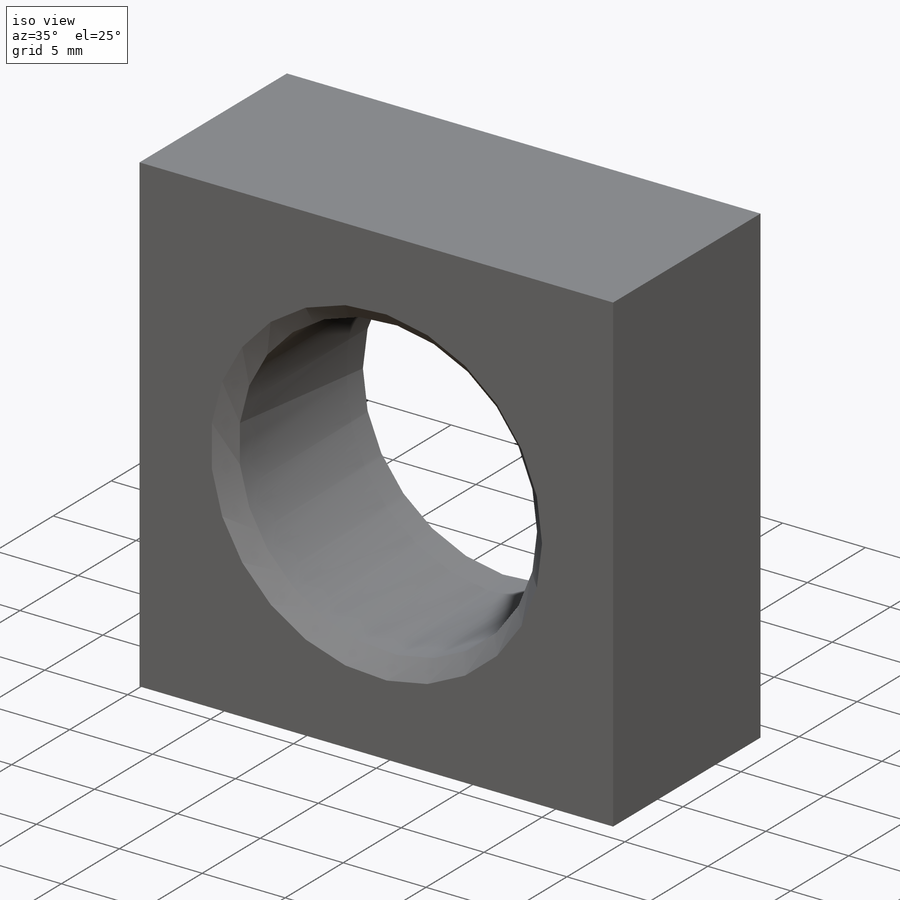
[diagram: iso view]
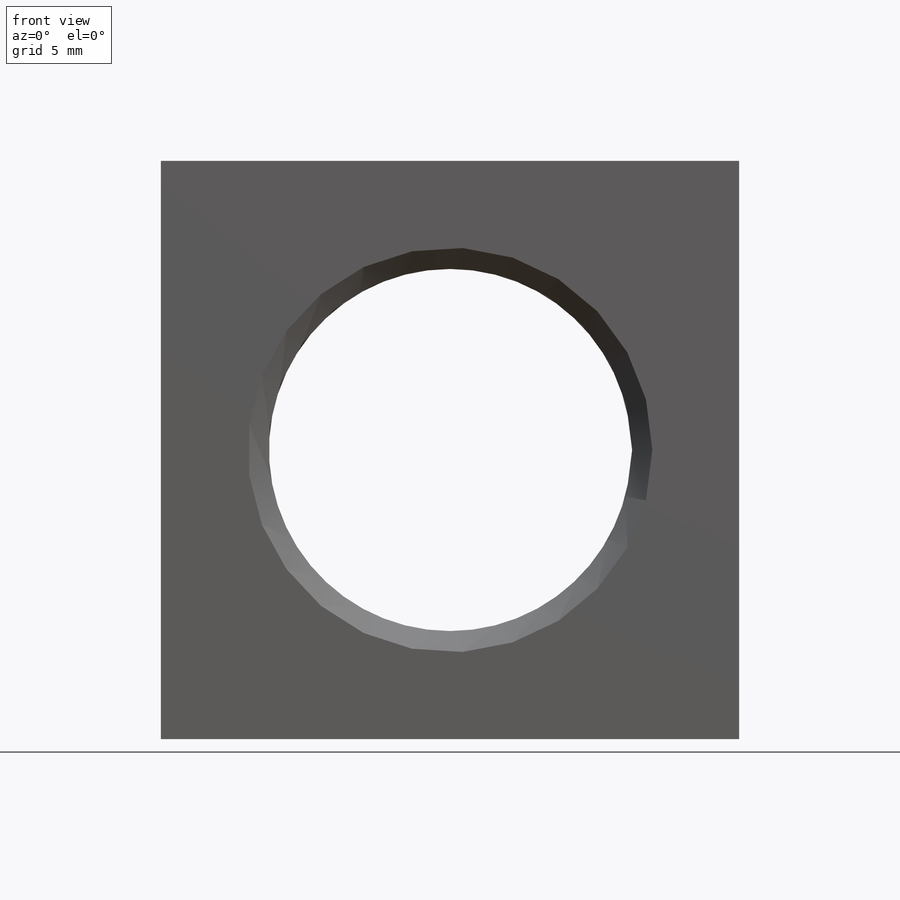
[diagram: front view]
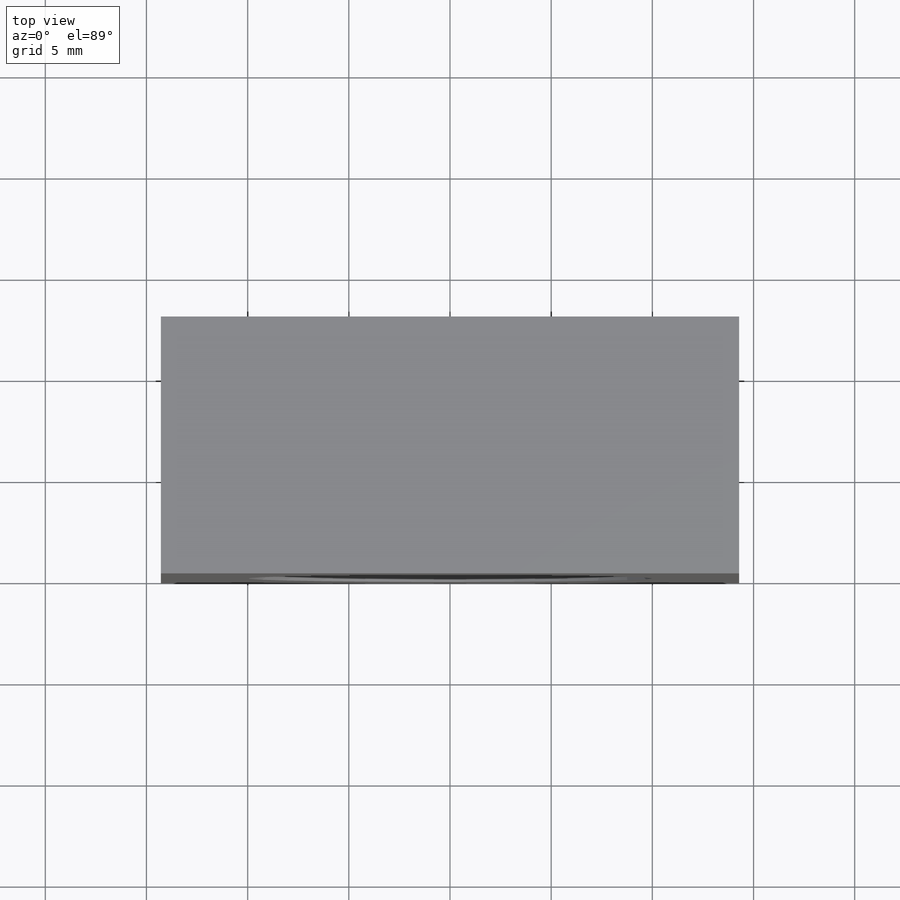
[diagram: top view]
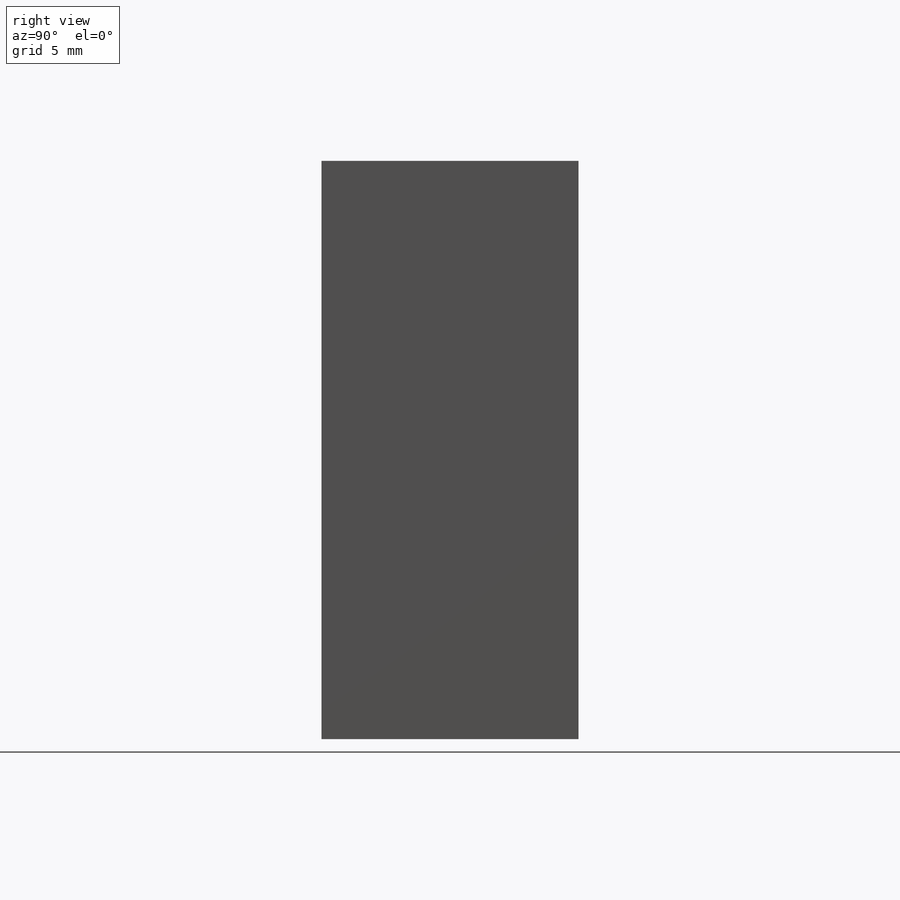
[diagram: right view]
SOLIDWORKS PART (.sldprt)
format: sldprt  version: not decoded by parser v0  size: 345,600 bytes
history: native  units: mm
features: sketch x3, material x1, extrude x1, hole x1, thread x1 + 1 further entry (+11 scaffold rows collapsed)
feature tree (19):
  scaffold x11  (default folders/planes/origin — collapsed)
  material  "6061-T6 Al"
  "Origin"  ID=392984584
  sketch  "Sketch"  dims[c1.D5=3.048mm c1.D6=3.048mm c1.D7=~1.947748mm c2.D6=3.048mm c2.D7=~2.392707mm c2.D5=2.8448mm c3.D6=3.048mm c3.D7=3.048mm c3.D8=1.5875mm c3.D9=4.7625mm c3.D10=2.54mm c3.D12=3.048mm c3.D13=6.604mm c3.D16=1.5875mm c3.D19=~2.38125mm c4.D9=3.175mm c4.D19=3.048mm c4.D22=2.54mm c4.D23=5.4102mm c4.D14=2.54mm c4.D3=990.6mm c4.D4=990.6mm c5.D3=990.6mm c5.D1=990.6mm c5.D2=917.575mm c6.D1=807.72mm c6.D2=12.7mm c6.D4=12.7mm c6.D5=38.1mm c6.D6=340.36mm c6.D7=38.1mm c6.D8=340.36mm c7.D7=6.35mm c7.D1=~102.901114mm c7.D2=~79.998856mm c8.D1=46.228mm c8.D2=57.15mm c8.D3=~35.706034mm c8.D4=~31.234425mm c9.D3=40.64mm c9.D4=40.64mm c9.D6=3.81mm c9.D7=6.096mm c10.D6=3.81mm c10.D7=3.048mm c10.D5=3.81mm c11.D7=~49.253342mm c11.D8=~37.691316mm c12.D7=50.8mm c12.D8=40.64mm c12.D6=33.02mm c13.D7=35.56mm c13.D1=50.8mm c13.D4=45.72mm c13.D8=~4.213439mm c14.D8=45.0deg c14.D10=0.254mm c14.D12=6.096mm c14.D14=6.223mm c14.D15=1.778mm c14.D16=1.524mm c14.D17=1.524mm c14.D18=57.15mm c14.D19=~0.697452mm c14.D20=~41.386999mm c15.D19=~0.697452mm c15.D8=~34.56784mm c16.D8=45.0deg c16.D20=~36.155415mm c16.D21=2.159mm c16.D22=~4.15925mm c17.D21=2.159mm c17.D15=1.143mm c17.D12=3.556mm c17.D19=3.556mm c17.D20=46.482mm c18.D21=46.482mm c18.D12=3.81mm c18.D19=3.81mm c18.D24=0.381mm c18.D6=0.508mm c18.D11=1.143mm c18.D14=~3.950315mm c18.D8=135.0deg c18.D17=~3.592102mm c19.D8=~5.586589mm c20.D8=45.0deg c20.D14=~30.176994mm c21.D14=135.0deg c21.D17=~5.930302mm c21.D8=135.0deg c22.D14=~3.592102mm c22.D8=~2.435377mm c23.D8=45.0deg c23.D14=0.508mm c23.D6=0.508mm c23.D17=47.244mm c23.D1=571.5mm c23.D2=304.8mm c23.D3=279.4mm c23.D4=279.4mm c23.D5=19.05mm c24.D6=19.05mm c24.D5=19.05mm c25.D6=19.05mm c25.D5=19.05mm c26.D6=19.05mm c26.D5=19.05mm c27.D6=~34.655305mm c27.D5=~34.655305mm c28.D6=~34.655305mm c28.D5=~34.655305mm c29.D6=~34.655305mm c29.D5=~34.655305mm c30.D6=12.7mm c30.D5=12.7mm c31.D6=12.7mm c31.D5=12.7mm c31.D3=25.4mm c31.D4=~35.921024mm c32.D5=25.4mm c32.D3=38.1mm c32.D4=42.9895mm c33.D5=304.8mm c33.D6=279.4mm c33.D7=279.4mm c34.D6=279.4mm c34.D7=279.4mm c35.D6=279.4mm c35.D7=279.4mm c36.D6=279.4mm c36.D7=279.4mm c37.D6=279.4mm c37.D7=279.4mm c38.D6=279.4mm c38.D7=279.4mm c39.D6=279.4mm c39.D7=279.4mm c40.D6=279.4mm c40.D7=279.4mm c41.D6=279.4mm c41.D7=279.4mm c42.D6=279.4mm c42.D7=279.4mm c43.D6=279.4mm c43.D2=279.4mm c43.D5=~283.980633mm c44.D6=279.4mm c44.D2=42.9895mm c44.D5=38.1mm c44.D3=38.1mm c45.D5=38.1mm c45.D2=190.5mm c45.D4=~81.373519mm c46.D4=5.0deg c46.D5=~81.373519mm c47.D5=10.0deg c47.D6=72.39mm c47.D3=72.39mm c48.D3=35.0deg c48.D5=10.0deg c48.D6=~216.182205mm c49.D6=37.5deg c49.D7=152.4mm c49.D8=228.6mm c50.D6=~181.360574mm c51.D6=80.0deg c51.D3=~330.928744mm c52.D3=120.0deg c52.D4=406.4mm c52.D7=200.0mm c52.D8=80.0mm c52.D5=80.0mm c53.D7=400.0mm c53.D1=17.78mm c53.D2=12.7mm c53.D3=63.5mm c53.D4=32.512mm c53.D5=128.524mm c53.D6=25.4mm c53.D8=128.524mm c53.D9=73.787mm c53.D10=6.985mm c54.D5=70.612mm c54.D1=28.575mm c54.D6=0.508mm c54.D11=1.778mm c54.D14=5.334mm c54.D15=1.27mm c54.D22=0.254mm]
  extrude  "Boss-Extrude1"  Depth=12.7mm
  hole  "M20x2.0 Tapped Hole1"  Diameter=18mm Depth=12.7mm
  sketch  "Sketch2"
  sketch  "Sketch1"  dims[hole-wizard template sketch: 46 standard entries collapsed; hole parameters kept: c15.Thru Tap Drill Dia.=18.0mm c15.Thru Tap Drill Depth=12.7mm c15.Near C'Sink Dia.=20.0mm c15.D4=~3.666174mm c15.Near C'Sink Angle=90.0deg c15.Far C'Sink Dia.=20.0mm c15.D6=~9.919017mm c15.Far C'Sink Angle=90.0deg]
  thread  "Hole Thread1"  Diameter=20mm  [1 undecoded]
decode coverage: 5 of 6 modeling features carry decoded parameters; 1 rows unclassified (native names shown)
note: ~ marks probable driven/reference dimensions
note: 1 parameter value undecoded
note: suppression state not decoded; provenance and decode notes live in map.json
